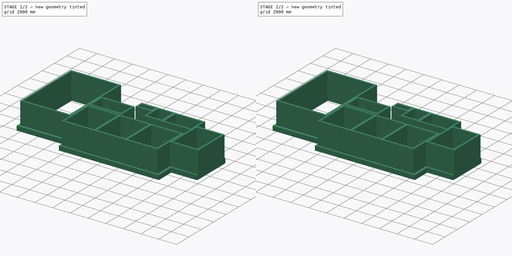
[diagram: build sequence overview — one tinted view per stage of 2, left to right]
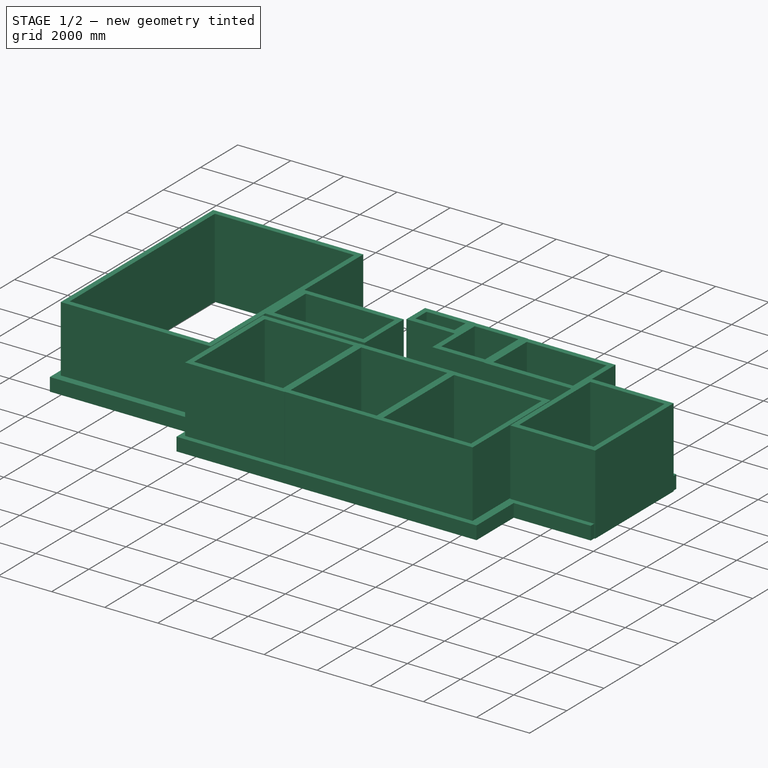
[diagram: stage 1 of 2 — iso view after this stage's code; geometry added in this stage tinted green]
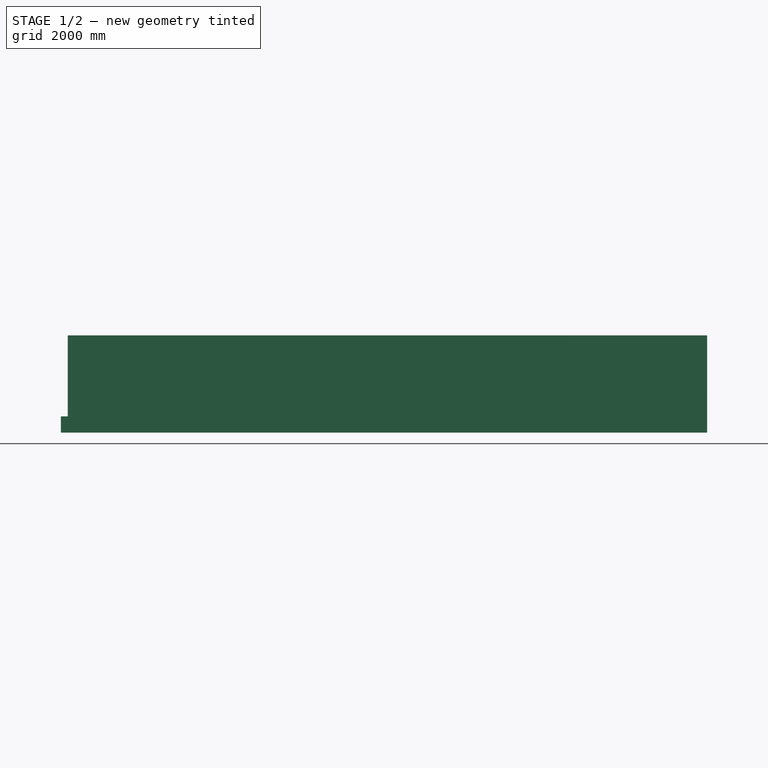
[diagram: stage 1 of 2 — front view after this stage's code; geometry added in this stage tinted green]
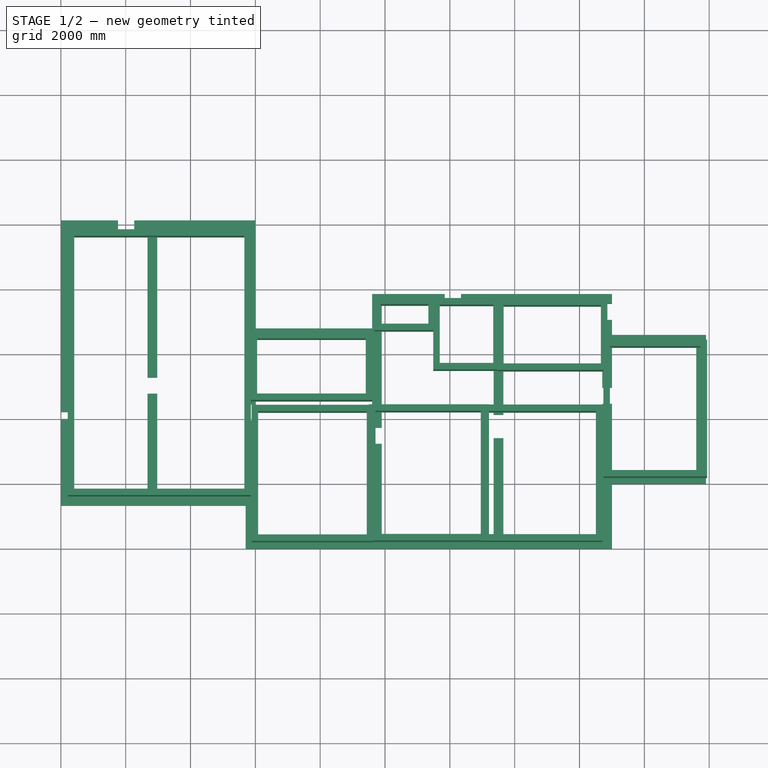
[diagram: stage 1 of 2 — top view after this stage's code; geometry added in this stage tinted green]
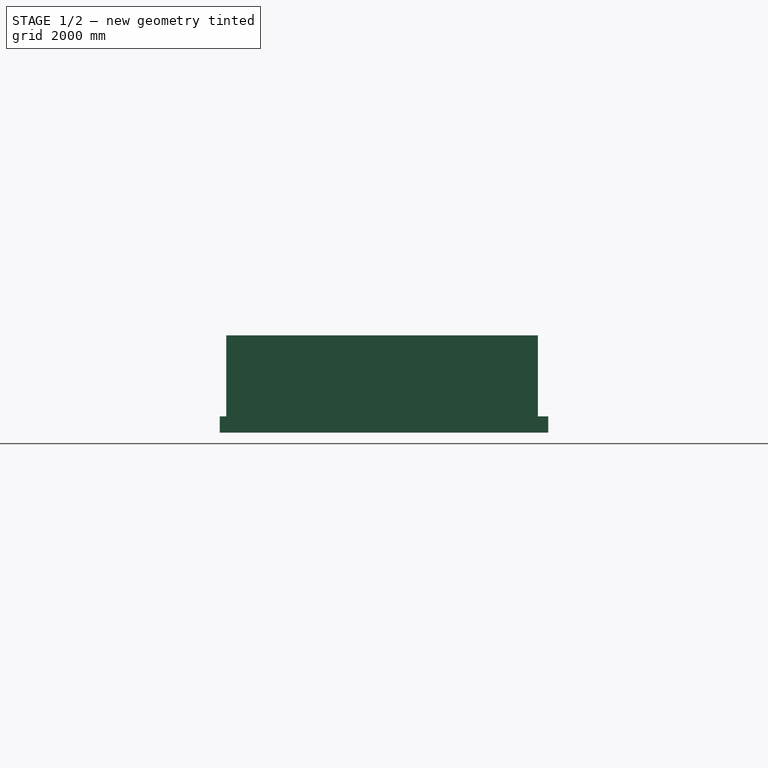
[diagram: stage 1 of 2 — right view after this stage's code; geometry added in this stage tinted green]
FCSTD DOCUMENT  (FreeCAD 0.19R17421 +113 (Git))
Label: PlanMaison
License: All rights reserved
LicenseURL: http://en.wikipedia.org/wiki/All_rights_reserved
objects: Sketcher::SketchObject×2, PartDesign::Body×2, Part::Extrusion×1, PartDesign::FeatureBase×1, Part::FeaturePython×1
note: 7 computed .brp shape members not serialized (recipe doc carries the construction recipe); baked Part::Feature solids carry a one-line shape summary decoded from their .brp

FEATURE [Sketcher::SketchObject] Sketch001  label="videsanitaire"
  MapMode = 5
  Support = -> [XY_Plane001]
  sketch-geometry (77):
    g0: LineSegment StartX=11000 StartY=0 StartZ=0 EndX=11000 EndY=2000 EndZ=0
    g1: LineSegment StartX=11000 StartY=7861.04 StartZ=0 EndX=6342.83 EndY=7861.04 EndZ=0
    g2: LineSegment StartX=3600 StartY=7861.04 StartZ=0 EndX=3600 EndY=6800 EndZ=0
    g3: LineSegment StartX=13900 StartY=6600 StartZ=0 EndX=13900 EndY=2000 EndZ=0
    g4: LineSegment StartX=13900 StartY=2000 StartZ=0 EndX=11000 EndY=2000 EndZ=0
    g5: LineSegment StartX=3600 StartY=6800 StartZ=0 EndX=0 EndY=6800 EndZ=0
    g6: LineSegment StartX=-6000 StartY=1331.05 StartZ=0 EndX=-6000 EndY=4007.4 EndZ=0
    g7: LineSegment StartX=0 StartY=10131 StartZ=0 EndX=0 EndY=6800 EndZ=0
    g8: LineSegment StartX=-5700 StartY=9831.05 StartZ=0 EndX=-4236.72 EndY=9831.05 EndZ=0
    g9: LineSegment StartX=-300 StartY=9831.05 StartZ=0 EndX=-300 EndY=4455.17 EndZ=0
    g10: LineSegment StartX=-300 StartY=1631.05 StartZ=0 EndX=-3026.39 EndY=1631.05 EndZ=0
    g11: LineSegment StartX=-5700 StartY=1631.05 StartZ=0 EndX=-5700 EndY=4007.4 EndZ=0
    g12: LineSegment StartX=3600 StartY=300 StartZ=0 EndX=0 EndY=300 EndZ=0
    g13: LineSegment StartX=0 StartY=300 StartZ=0 EndX=0 EndY=3955.17 EndZ=0
    g14: LineSegment StartX=0 StartY=6500 StartZ=0 EndX=3600 EndY=6500 EndZ=0
    g15: LineSegment StartX=3600 StartY=6500 StartZ=0 EndX=3600 EndY=3738.36 EndZ=0
    g16: LineSegment StartX=3900 StartY=7561.04 StartZ=0 EndX=5842.83 EndY=7561.04 EndZ=0
    g17: LineSegment StartX=10700 StartY=4472.7 StartZ=0 EndX=10700 EndY=300 EndZ=0
    g18: LineSegment StartX=10700 StartY=300 StartZ=0 EndX=7649.38 EndY=300 EndZ=0
    g19: LineSegment StartX=3900 StartY=300 StartZ=0 EndX=3900 EndY=3238.36 EndZ=0
    g20: LineSegment StartX=11000 StartY=7861.04 StartZ=0 EndX=11000 EndY=7561.04 EndZ=0
    g21: LineSegment StartX=11000 StartY=6300 StartZ=0 EndX=13600 EndY=6300 EndZ=0
    g22: LineSegment StartX=13600 StartY=6300 StartZ=0 EndX=13600 EndY=2300 EndZ=0
    g23: LineSegment StartX=13600 StartY=2300 StartZ=0 EndX=11000 EndY=2300 EndZ=0
    g24: LineSegment StartX=11000 StartY=2300 StartZ=0 EndX=11000 EndY=4472.7 EndZ=0
    g25: LineSegment [constr] StartX=3600 StartY=6800 StartZ=0 EndX=3600 EndY=-529.656 EndZ=0
    g26: LineSegment [constr] StartX=0 StartY=6563.98 StartZ=0 EndX=0 EndY=-876.628 EndZ=0
    g27: LineSegment StartX=3600 StartY=3738.36 StartZ=0 EndX=3900 EndY=3738.36 EndZ=0
    g28: LineSegment StartX=3600 StartY=3238.36 StartZ=0 EndX=3900 EndY=3238.36 EndZ=0
    g29: LineSegment StartX=3900 StartY=3738.36 StartZ=0 EndX=3900 EndY=7561.04 EndZ=0
    g30: LineSegment StartX=3600 StartY=3238.36 StartZ=0 EndX=3600 EndY=300 EndZ=0
    g31: LineSegment StartX=-300 StartY=4455.17 StartZ=0 EndX=0 EndY=4455.17 EndZ=0
    g32: LineSegment StartX=-300 StartY=3955.17 StartZ=0 EndX=0 EndY=3955.17 EndZ=0
    g33: LineSegment StartX=0 StartY=4455.17 StartZ=0 EndX=0 EndY=6500 EndZ=0
    g34: LineSegment StartX=-300 StartY=3955.17 StartZ=0 EndX=-300 EndY=1631.05 EndZ=0
    g35: LineSegment StartX=10700 StartY=4972.7 StartZ=0 EndX=11000 EndY=4972.7 EndZ=0
    g36: LineSegment StartX=10700 StartY=4472.7 StartZ=0 EndX=11000 EndY=4472.7 EndZ=0
    g37: LineSegment StartX=11000 StartY=4972.7 StartZ=0 EndX=11000 EndY=6300 EndZ=0
    g38: LineSegment StartX=10700 StartY=6600 StartZ=0 EndX=10700 EndY=4972.7 EndZ=0
    g39: LineSegment StartX=7349.38 StartY=7561.04 StartZ=0 EndX=7349.38 EndY=4133.43 EndZ=0
    g40: LineSegment StartX=7649.38 StartY=7561.04 StartZ=0 EndX=7649.38 EndY=4133.43 EndZ=0
    g41: LineSegment StartX=7649.38 StartY=7561.04 StartZ=0 EndX=11000 EndY=7561.04 EndZ=0
    g42: LineSegment StartX=7349.38 StartY=300 StartZ=0 EndX=3900 EndY=300 EndZ=0
    g43: LineSegment StartX=7349.38 StartY=4133.43 StartZ=0 EndX=7649.38 EndY=4133.43 EndZ=0
    g44: LineSegment StartX=7349.38 StartY=3413.42 StartZ=0 EndX=7649.38 EndY=3413.42 EndZ=0
    g45: LineSegment StartX=7349.38 StartY=3413.42 StartZ=0 EndX=7349.38 EndY=300 EndZ=0
    g46: LineSegment StartX=7649.38 StartY=3413.42 StartZ=0 EndX=7649.38 EndY=300 EndZ=0
    g47: LineSegment StartX=-3326.39 StartY=9831.05 StartZ=0 EndX=-3326.39 EndY=5285.91 EndZ=0
    g48: LineSegment StartX=-3026.39 StartY=9831.05 StartZ=0 EndX=-3026.39 EndY=5285.91 EndZ=0
    g49: LineSegment StartX=-3026.39 StartY=9831.05 StartZ=0 EndX=-300 EndY=9831.05 EndZ=0
    g50: LineSegment StartX=-3326.39 StartY=1631.05 StartZ=0 EndX=-5700 EndY=1631.05 EndZ=0
    g51: LineSegment StartX=-3326.39 StartY=5285.91 StartZ=0 EndX=-3026.39 EndY=5285.91 EndZ=0
    g52: LineSegment StartX=-3326.39 StartY=4785.91 StartZ=0 EndX=-3026.39 EndY=4785.91 EndZ=0
    g53: LineSegment StartX=-3326.39 StartY=4785.91 StartZ=0 EndX=-3326.39 EndY=1631.05 EndZ=0
    g54: LineSegment StartX=-3026.39 StartY=4785.91 StartZ=0 EndX=-3026.39 EndY=1631.05 EndZ=0
    g55: LineSegment StartX=5842.83 StartY=7861.04 StartZ=0 EndX=5842.83 EndY=7561.04 EndZ=0
    g56: LineSegment StartX=6342.83 StartY=7861.04 StartZ=0 EndX=6342.83 EndY=7561.04 EndZ=0
    g57: LineSegment StartX=5842.83 StartY=7861.04 StartZ=0 EndX=3600 EndY=7861.04 EndZ=0
    g58: LineSegment StartX=6342.83 StartY=7561.04 StartZ=0 EndX=7349.38 EndY=7561.04 EndZ=0
    g59: LineSegment StartX=-6000 StartY=4220.74 StartZ=0 EndX=-5700 EndY=4220.74 EndZ=0
    g60: LineSegment StartX=-6000 StartY=4007.4 StartZ=0 EndX=-5700 EndY=4007.4 EndZ=0
    g61: LineSegment StartX=-6000 StartY=4220.74 StartZ=0 EndX=-6000 EndY=10131 EndZ=0
    g62: LineSegment StartX=-5700 StartY=4220.74 StartZ=0 EndX=-5700 EndY=9831.05 EndZ=0
    g63: LineSegment [constr] StartX=-6000 StartY=5720.73 StartZ=0 EndX=-6000 EndY=1000.23 EndZ=0
    g64: LineSegment StartX=11000 StartY=7061.04 StartZ=0 EndX=10700 EndY=7061.04 EndZ=0
    g65: LineSegment StartX=10700 StartY=7061.04 StartZ=0 EndX=10700 EndY=6600 EndZ=0
    g66: LineSegment StartX=13900 StartY=6600 StartZ=0 EndX=11000 EndY=6600 EndZ=0
    g67: LineSegment StartX=11000 StartY=7061.04 StartZ=0 EndX=11000 EndY=6600 EndZ=0
    g68: LineSegment [constr] StartX=10700 StartY=8234.02 StartZ=0 EndX=10700 EndY=-324.27 EndZ=0
    g69: LineSegment StartX=-3736.72 StartY=9831.05 StartZ=0 EndX=-3326.39 EndY=9831.05 EndZ=0
    g70: LineSegment StartX=-6000 StartY=10131 StartZ=0 EndX=-4236.72 EndY=10131 EndZ=0
    g71: LineSegment StartX=-3736.72 StartY=10131 StartZ=0 EndX=0 EndY=10131 EndZ=0
    g72: LineSegment StartX=11000 StartY=0 StartZ=0 EndX=-300 EndY=0 EndZ=0
    g73: LineSegment StartX=-300 StartY=0 StartZ=0 EndX=-300 EndY=1331.05 EndZ=0
    g74: LineSegment StartX=-300 StartY=1331.05 StartZ=0 EndX=-6000 EndY=1331.05 EndZ=0
    g75: LineSegment StartX=-4236.72 StartY=10131 StartZ=0 EndX=-4236.72 EndY=9831.05 EndZ=0
    g76: LineSegment StartX=-3736.72 StartY=10131 StartZ=0 EndX=-3736.72 EndY=9831.05 EndZ=0
  constraints (188):
    c: Coincident(g57,g2)
    c: Horizontal(g1)
    c: Vertical(g0)
    c: Vertical(g2)
    c: Coincident(g3,g4)
    c: Horizontal(g4)
    c: Vertical(g3)
    c: Horizontal(g5)
    c: Coincident(g2,g5)
    c: Vertical(g6)
    c: Vertical(g7)
    c: Coincident(g7,g5)
    c: DistanceX(g38,g3) = 3200
    c: DistanceY(g3,g3) = 4600
    c: DistanceY(g0,g0) = 2000
    c: DistanceX(g5,g5) = 3600
    c: DistanceY(g6,g61) = 8800
    c: DistanceX(g61,g7) = 6000
    c: Coincident(g4,g0)
    c: Coincident(g49,g9)
    c: Coincident(g34,g10)
    c: Coincident(g50,g11)
    c: Coincident(g62,g8)
    c: Horizontal(g8)
    c: Horizontal(g10)
    c: Vertical(g9)
    c: Vertical(g11)
    c: Coincident(g12,g13)
    c: Coincident(g33,g14)
    c: Coincident(g14,g15)
    c: Horizontal(g12)
    c: Horizontal(g14)
    c: Vertical(g13)
    c: Vertical(g15)
    c: Coincident(g17,g18)
    c: Coincident(g42,g19)
    c: Coincident(g29,g16)
    c: Horizontal(g16)
    c: Horizontal(g18)
    c: Vertical(g19)
    c: Coincident(g20,g1)
    c: Vertical(g20)
    c: DistanceX(g57,g1) = 7400
    c: Coincident(g21,g22)
    c: Coincident(g22,g23)
    c: Coincident(g23,g24)
    c: Horizontal(g21)
    c: Horizontal(g23)
    c: Vertical(g22)
    c: Vertical(g24)
    c: Coincident(g25,g2)
    c: Vertical(g25)
    c: PointOnObject(g26,g-2)
    c: Vertical(g26)
    c: Coincident(g37,g21)
    c: DistanceY(g41,g1) = 300
    c: DistanceY(g21,g38) = 300
    c: Vertical(g17)
    c: PointOnObject(g12,g25)
    c: DistanceY(g49,g7) = 300
    c: DistanceY(g14,g2) = 300
    c: DistanceX(g12,g42) = 300
    c: DistanceY(g0,g17) = 300
    c: DistanceX(g17,g0) = 300
    c: DistanceY(g3,g22) = 300
    c: DistanceX(g22,g3) = 300
    c: Coincident(g20,g41)
    c: Horizontal(g27)
    c: Horizontal(g28)
    c: Coincident(g15,g27)
    c: Coincident(g19,g28)
    c: Coincident(g29,g27)
    c: Tangent(g19,g29)
    c: Coincident(g30,g28)
    c: Coincident(g30,g12)
    c: Horizontal(g31)
    c: Horizontal(g32)
    c: Coincident(g13,g32)
    c: Coincident(g33,g31)
    c: Tangent(g13,g33)
    c: Coincident(g9,g31)
    c: Tangent(g9,g34)
    c: DistanceY(g13,g31) = 500
    c: DistanceX(g38,g21) = 300
    c: Horizontal(g35)
    c: Horizontal(g36)
    c: Coincident(g17,g36)
    c: Coincident(g24,g36)
    c: Coincident(g37,g35)
    c: Coincident(g38,g35)
    c: Vertical(g38)
    c: DistanceY(g24,g35) = 500
    c: Vertical(g39)
    c: Vertical(g40)
    c: Coincident(g58,g39)
    c: Coincident(g41,g40)
    c: Tangent(g16,g41)
    c: Coincident(g18,g46)
    c: Coincident(g42,g45)
    c: DistanceX(g45,g18) = 300
    c: Horizontal(g43)
    c: Horizontal(g44)
    c: Coincident(g39,g43)
    c: Coincident(g45,g44)
    c: Tangent(g39,g45)
    c: Coincident(g40,g43)
    c: Coincident(g46,g44)
    c: Tangent(g40,g46)
    c: Vertical(g47)
    c: Vertical(g48)
    c: Coincident(g69,g47)
    c: Coincident(g49,g48)
    c: Tangent(g8,g49)
    c: Coincident(g10,g54)
    c: Coincident(g50,g53)
    c: Tangent(g10,g50)
    c: Horizontal(g51)
    c: Horizontal(g52)
    c: Coincident(g47,g51)
    c: Coincident(g53,g52)
    c: Tangent(g47,g53)
    c: Coincident(g48,g51)
    c: Coincident(g54,g52)
    c: Tangent(g48,g54)
    c: Vertical(g55)
    c: Coincident(g1,g56)
    c: Coincident(g57,g55)
    c: Tangent(g1,g57)
    c: Coincident(g16,g55)
    c: Coincident(g58,g56)
    c: Tangent(g16,g58)
    c: Vertical(g56)
    c: Horizontal(g59)
    c: Horizontal(g60)
    c: Coincident(g6,g60)
    c: Coincident(g61,g59)
    c: Coincident(g11,g60)
    c: Coincident(g62,g59)
    c: DistanceX(g59,g59) = 300
    c: Vertical(g30)
    c: Vertical(g62)
    c: Vertical(g61)
    c: DistanceX(g6,g11) = 300
    c: PointOnObject(g63,g61)
    c: Vertical(g63)
    c: Coincident(g64,g65)
    c: Horizontal(g64)
    c: Vertical(g65)
    c: Coincident(g65,g38)
    c: Coincident(g66,g3)
    c: Horizontal(g66)
    c: Coincident(g67,g64)
    c: Coincident(g67,g66)
    c: Vertical(g67)
    c: DistanceY(g64,g20) = 500
    c: Vertical(g37)
    c: Vertical(g68)
    c: DistanceX(g68,g1) = 300
    c: PointOnObject(g64,g68)
    c: PointOnObject(g17,g68)
    c: DistanceX(g17,g24) = 300
    c: DistanceX(g38,g66) = 300
    c: DistanceX(g50,g10) = 300
    c: PointOnObject(g14,g26)
    c: Tangent(g8,g69)
    c: DistanceX(g8,g69) = 500
    c: Coincident(g70,g61)
    c: Horizontal(g70)
    c: Coincident(g71,g7)
    c: Horizontal(g71)
    c: Coincident(g34,g32)
    c: Coincident(g72,g0)
    c: PointOnObject(g72,g-1)
    c: Horizontal(g72)
    c: Coincident(g73,g72)
    c: Vertical(g73)
    c: Coincident(g74,g73)
    c: Coincident(g74,g6)
    c: Horizontal(g74)
    c: DistanceY(g8,g61) = 300
    c: DistanceY(g6,g11) = 300
    c: DistanceX(g32,g13) = 300
    c: DistanceX(g72,g12) = 300
    c: Coincident(g75,g70)
    c: Coincident(g75,g8)
    c: Vertical(g75)
    c: Coincident(g76,g71)
    c: Coincident(g76,g69)
FEATURE [Part::Extrusion] Extrude
  Base = -> Sketch001
  Dir = (0,0,1)
  DirMode = 2
  FaceMakerClass = Part::FaceMakerBullseye
  LengthFwd = 500
  LengthRev = 0
  Solid = true
  Symmetric = false
FEATURE [PartDesign::Body] Body001  label="sousosl"
  BaseFeature = -> Extrude
  Group = -> [BaseFeature,Sketch001]
  Origin = -> Origin001
  Tip = -> BaseFeature
FEATURE [Sketcher::SketchObject] Sketch  label="Pieces"
  MapMode = 5
  Support = -> [XY_Plane]
  sketch-geometry (36):
    g0: LineSegment StartX=10836.4 StartY=6307.8 StartZ=0 EndX=13836.4 EndY=6307.8 EndZ=0
    g1: LineSegment StartX=13836.4 StartY=6307.8 StartZ=0 EndX=13836.4 EndY=2287.8 EndZ=0
    g2: LineSegment StartX=13836.4 StartY=2287.8 StartZ=0 EndX=10836.4 EndY=2287.8 EndZ=0
    g3: LineSegment StartX=10836.4 StartY=2287.8 StartZ=0 EndX=10836.4 EndY=6307.8 EndZ=0
    g4: LineSegment StartX=7559.14 StartY=7575.39 StartZ=0 EndX=10759.1 EndY=7575.39 EndZ=0
    g5: LineSegment StartX=10759.1 StartY=7575.39 StartZ=0 EndX=10759.1 EndY=5575.39 EndZ=0
    g6: LineSegment StartX=10759.1 StartY=5575.39 StartZ=0 EndX=7559.14 EndY=5575.39 EndZ=0
    g7: LineSegment StartX=7559.14 StartY=5575.39 StartZ=0 EndX=7559.14 EndY=7575.39 EndZ=0
    g8: LineSegment StartX=5586.76 StartY=7590.98 StartZ=0 EndX=7436.76 EndY=7590.98 EndZ=0
    g9: LineSegment StartX=7436.76 StartY=7590.98 StartZ=0 EndX=7436.76 EndY=5590.98 EndZ=0
    g10: LineSegment StartX=7436.76 StartY=5590.98 StartZ=0 EndX=5586.76 EndY=5590.98 EndZ=0
    g11: LineSegment StartX=5586.76 StartY=5590.98 StartZ=0 EndX=5586.76 EndY=7590.98 EndZ=0
    g12: LineSegment StartX=3765.78 StartY=7602.59 StartZ=0 EndX=5435.78 EndY=7602.59 EndZ=0
    g13: LineSegment StartX=5435.78 StartY=7602.59 StartZ=0 EndX=5435.78 EndY=6802.59 EndZ=0
    g14: LineSegment StartX=5435.78 StartY=6802.59 StartZ=0 EndX=3765.78 EndY=6802.59 EndZ=0
    g15: LineSegment StartX=3765.78 StartY=6802.59 StartZ=0 EndX=3765.78 EndY=7602.59 EndZ=0
    g16: LineSegment StartX=7051.83 StartY=4306.47 StartZ=0 EndX=10606 EndY=4306.47 EndZ=0
    g17: LineSegment StartX=10606 StartY=4306.47 StartZ=0 EndX=10606 EndY=306.465 EndZ=0
    g18: LineSegment StartX=10606 StartY=306.465 StartZ=0 EndX=7051.83 EndY=306.465 EndZ=0
    g19: LineSegment StartX=7051.83 StartY=306.465 StartZ=0 EndX=7051.83 EndY=4306.47 EndZ=0
    g20: LineSegment StartX=3605.96 StartY=4313.56 StartZ=0 EndX=7105.96 EndY=4313.56 EndZ=0
    g21: LineSegment StartX=7105.96 StartY=4313.56 StartZ=0 EndX=7105.96 EndY=313.559 EndZ=0
    g22: LineSegment StartX=7105.96 StartY=313.559 StartZ=0 EndX=3605.96 EndY=313.559 EndZ=0
    g23: LineSegment StartX=3605.96 StartY=313.559 StartZ=0 EndX=3605.96 EndY=4313.56 EndZ=0
    g24: LineSegment StartX=-15.8159 StartY=4299.57 StartZ=0 EndX=3534.18 EndY=4299.57 EndZ=0
    g25: LineSegment StartX=3534.18 StartY=4299.57 StartZ=0 EndX=3534.18 EndY=299.572 EndZ=0
    g26: LineSegment StartX=3534.18 StartY=299.572 StartZ=0 EndX=-15.8159 EndY=299.572 EndZ=0
    g27: LineSegment StartX=-15.8159 StartY=299.572 StartZ=0 EndX=-15.8159 EndY=4299.57 EndZ=0
    g28: LineSegment StartX=-5687.71 StartY=9713.04 StartZ=0 EndX=-237.714 EndY=9713.04 EndZ=0
    g29: LineSegment StartX=-237.714 StartY=9713.04 StartZ=0 EndX=-237.714 EndY=1713.04 EndZ=0
    g30: LineSegment StartX=-237.714 StartY=1713.04 StartZ=0 EndX=-5687.71 EndY=1713.04 EndZ=0
    g31: LineSegment StartX=-5687.71 StartY=1713.04 StartZ=0 EndX=-5687.71 EndY=9713.04 EndZ=0
    g32: LineSegment StartX=-46.0817 StartY=6547.96 StartZ=0 EndX=3503.92 EndY=6547.96 EndZ=0
    g33: LineSegment StartX=3503.92 StartY=6547.96 StartZ=0 EndX=3503.92 EndY=4647.96 EndZ=0
    g34: LineSegment StartX=3503.92 StartY=4647.96 StartZ=0 EndX=-46.0817 EndY=4647.96 EndZ=0
    g35: LineSegment StartX=-46.0817 StartY=4647.96 StartZ=0 EndX=-46.0817 EndY=6547.96 EndZ=0
  constraints (90):
    c: Coincident(g0,g1)
    c: Coincident(g1,g2)
    c: Coincident(g2,g3)
    c: Coincident(g3,g0)
    c: Horizontal(g0)
    c: Horizontal(g2)
    c: Vertical(g1)
    c: Vertical(g3)
    c: Coincident(g4,g5)
    c: Coincident(g5,g6)
    c: Coincident(g6,g7)
    c: Coincident(g7,g4)
    c: Horizontal(g4)
    c: Horizontal(g6)
    c: Vertical(g5)
    c: Vertical(g7)
    c: Coincident(g8,g9)
    c: Coincident(g9,g10)
    c: Coincident(g10,g11)
    c: Coincident(g11,g8)
    c: Horizontal(g8)
    c: Horizontal(g10)
    c: Vertical(g9)
    c: Vertical(g11)
    c: Coincident(g12,g13)
    c: Coincident(g13,g14)
    c: Coincident(g14,g15)
    c: Coincident(g15,g12)
    c: Horizontal(g12)
    c: Horizontal(g14)
    c: Vertical(g13)
    c: Vertical(g15)
    c: Coincident(g16,g17)
    c: Coincident(g17,g18)
    c: Coincident(g18,g19)
    c: Coincident(g19,g16)
    c: Horizontal(g16)
    c: Horizontal(g18)
    c: Vertical(g17)
    c: Vertical(g19)
    c: Coincident(g20,g21)
    c: Coincident(g21,g22)
    c: Coincident(g22,g23)
    c: Coincident(g23,g20)
    c: Horizontal(g20)
    c: Horizontal(g22)
    c: Vertical(g21)
    c: Vertical(g23)
    c: Coincident(g24,g25)
    c: Coincident(g25,g26)
    c: Coincident(g26,g27)
    c: Coincident(g27,g24)
    c: Horizontal(g24)
    c: Horizontal(g26)
    c: Vertical(g25)
    c: Vertical(g27)
    c: Coincident(g28,g29)
    c: Coincident(g29,g30)
    c: Coincident(g30,g31)
    c: Coincident(g31,g28)
    c: Horizontal(g28)
    c: Horizontal(g30)
    c: Vertical(g29)
    c: Vertical(g31)
    c: Coincident(g32,g33)
    c: Coincident(g33,g34)
    c: Coincident(g34,g35)
    c: Coincident(g35,g32)
    c: Horizontal(g32)
    c: Horizontal(g34)
    c: Vertical(g33)
    c: Vertical(g35)
    c: DistanceY(g33,g32) = 1900
    c: DistanceY(g9,g8) = 2000
    c: DistanceY(g6,g4) = 2000
    c: DistanceX(g28,g28) = 5450
    c: DistanceY(g31,g31) = 8000
    c: DistanceX(g32,g32) = 3550
    c: DistanceX(g24,g24) = 3550
    c: DistanceY(g26,g24) = 4000
    c: DistanceX(g8,g8) = 1850
    c: DistanceY(g14,g12) = 800
    c: DistanceX(g12,g12) = 1670
    c: DistanceX(g4,g4) = 3200
    c: DistanceX(g0,g0) = 3000
    c: DistanceY(g1,g0) = 4020
    c: DistanceY(g22,g20) = 4000
    c: DistanceY(g18,g16) = 4000
    c: DistanceX(g22,g21) = 3500
    c: DistanceX(g21,g17) = 3500
FEATURE [PartDesign::Body] Body  label="rez de chaussee"
  Group = -> [Sketch]
  Origin = -> Origin
  Placement = pos=(0,0,500) rot=(0,1,0;0rad)
FEATURE [Part::FeaturePython] Wall  # Arch/BIM 150 (typed FeaturePython)
  Align = 2
  Base = -> Sketch
  BlockHeight = 0
  BlockLength = 0
  CountBroken = 0
  CountEntire = 0
  Face = 0
  Height = 3000
  HorizontalArea = 0
  IfcData = attributes={"PredefinedType": {"name": "PredefinedType", "type": "IfcWallTypeEnum", "is_enum": true, "enum_values": ["MOVABLE", "PA... (+154 chars omitted)
  IfcType = 150
  Joint = 0
  Length = 120088
  MakeBlocks = false
  MoveBase = false
  MoveWithHost = false
  Normal = (0,0,0)
  OffsetFirst = 0
  OffsetSecond = 0
  PerimeterLength = 0
  PredefinedType = 0
  VerticalArea = 0
  Width = 200
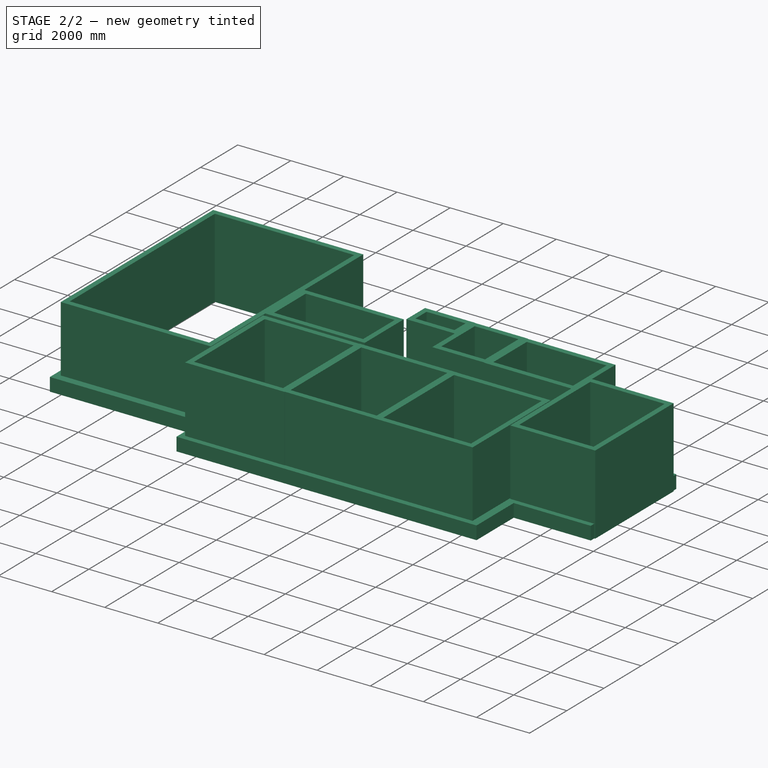
[diagram: stage 2 of 2 — iso view after this stage's code; geometry added in this stage tinted green]
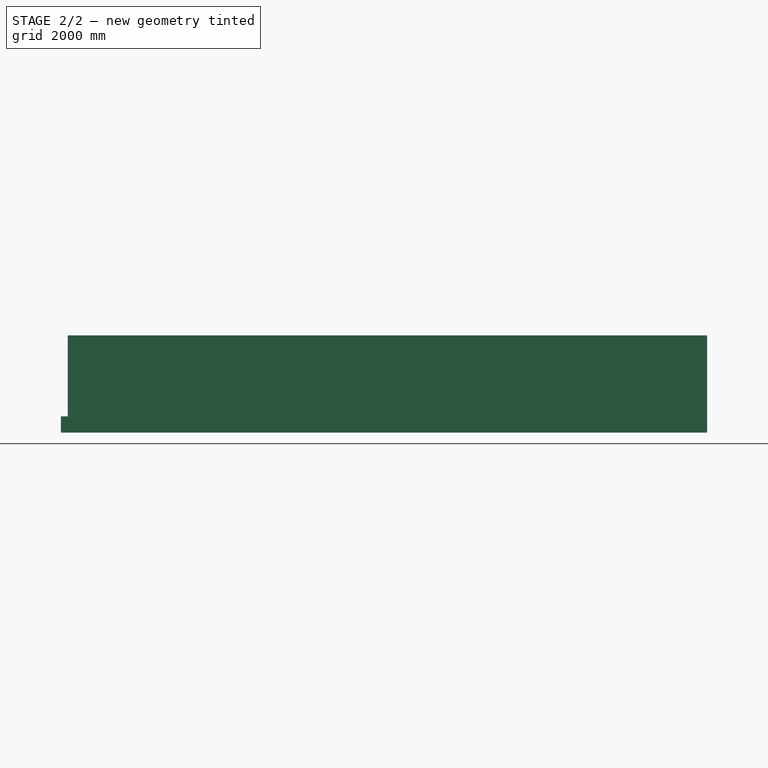
[diagram: stage 2 of 2 — front view after this stage's code; geometry added in this stage tinted green]
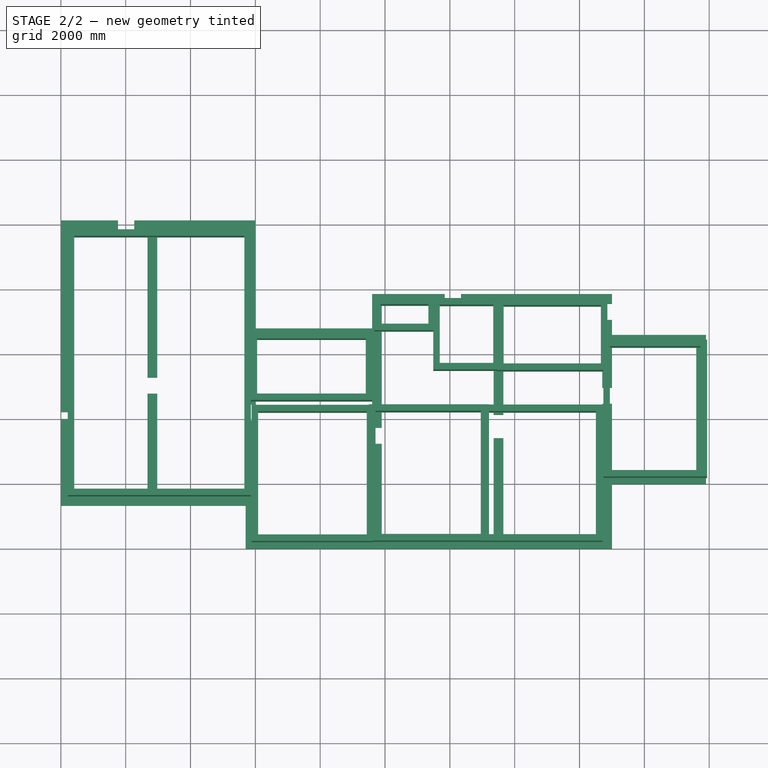
[diagram: stage 2 of 2 — top view after this stage's code; geometry added in this stage tinted green]
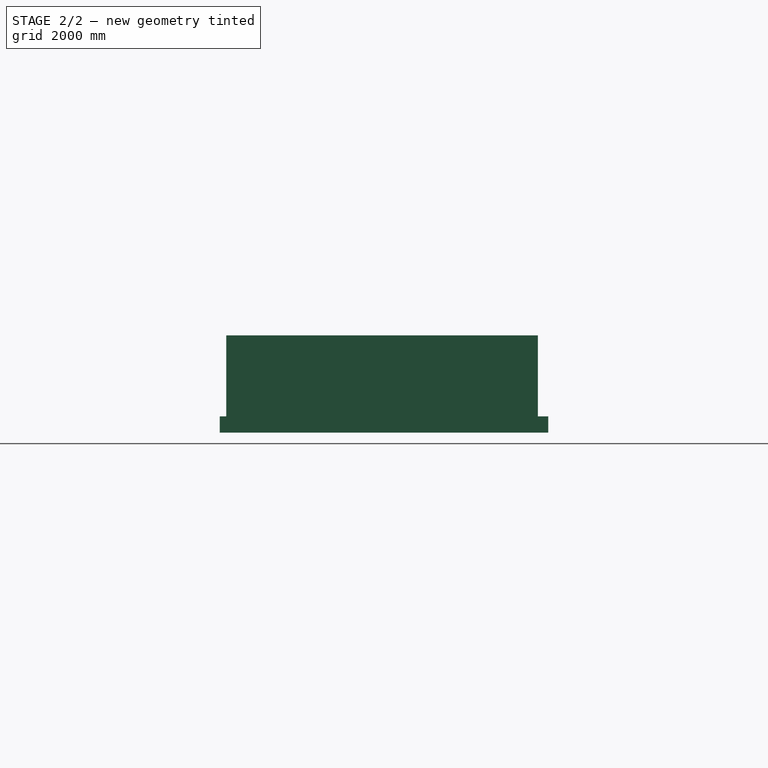
[diagram: stage 2 of 2 — right view after this stage's code; geometry added in this stage tinted green]
FEATURE [PartDesign::FeatureBase] BaseFeature
  BaseFeature = -> Extrude
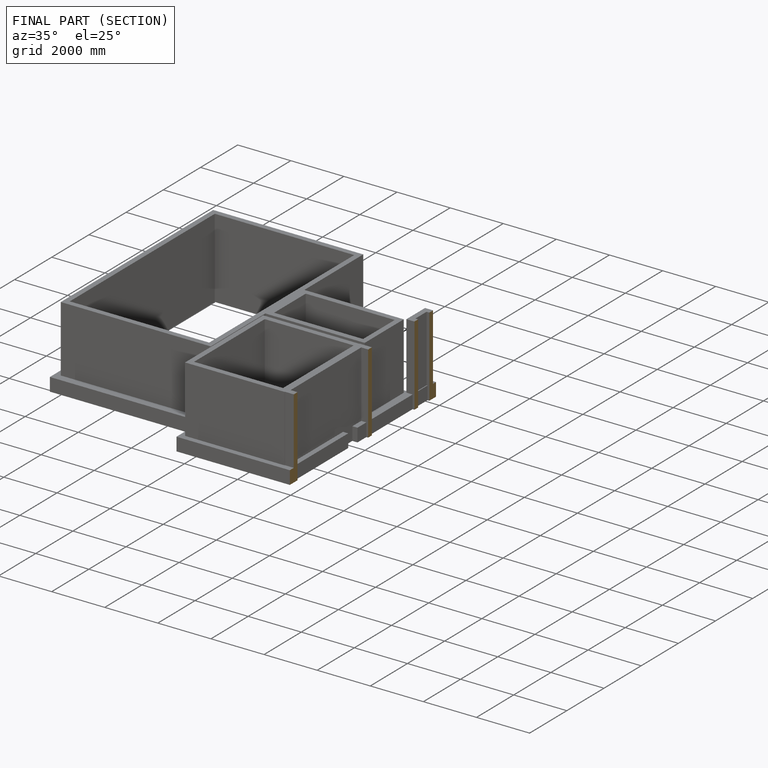
[diagram: finished part — half-section view (interior)]
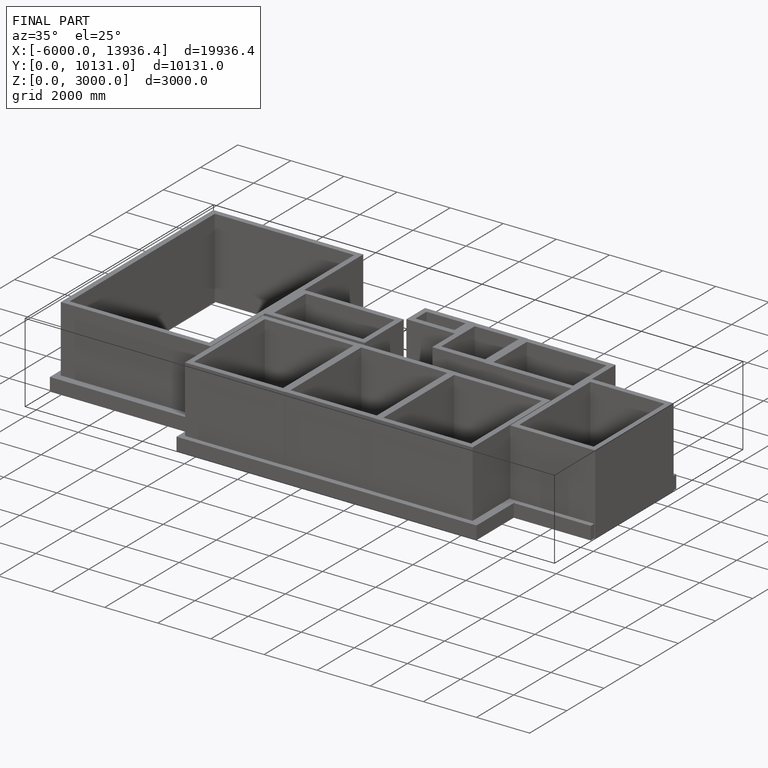
[diagram: finished part — iso view with bounding-box wireframe]
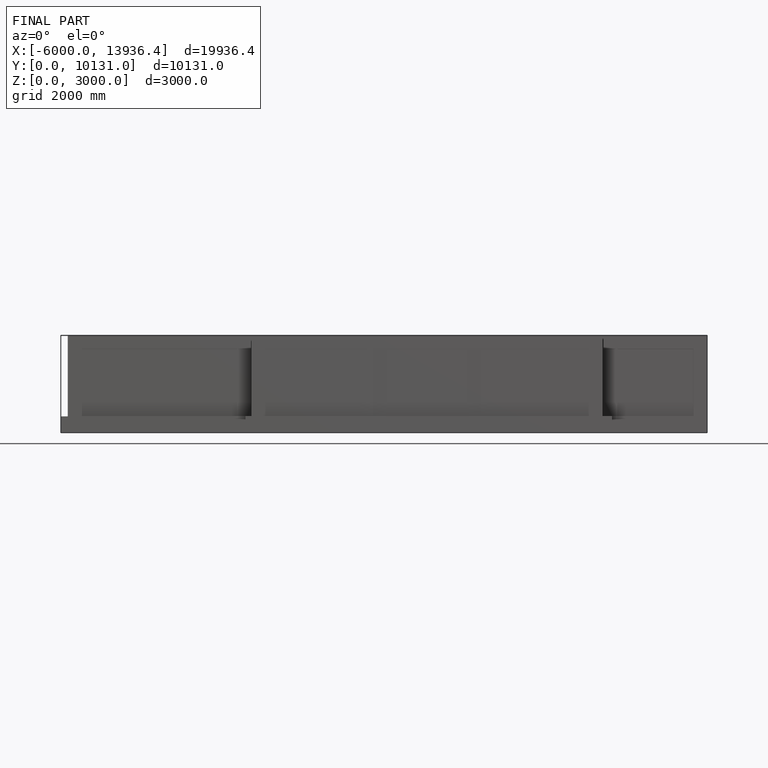
[diagram: finished part — front view with bounding-box wireframe]
